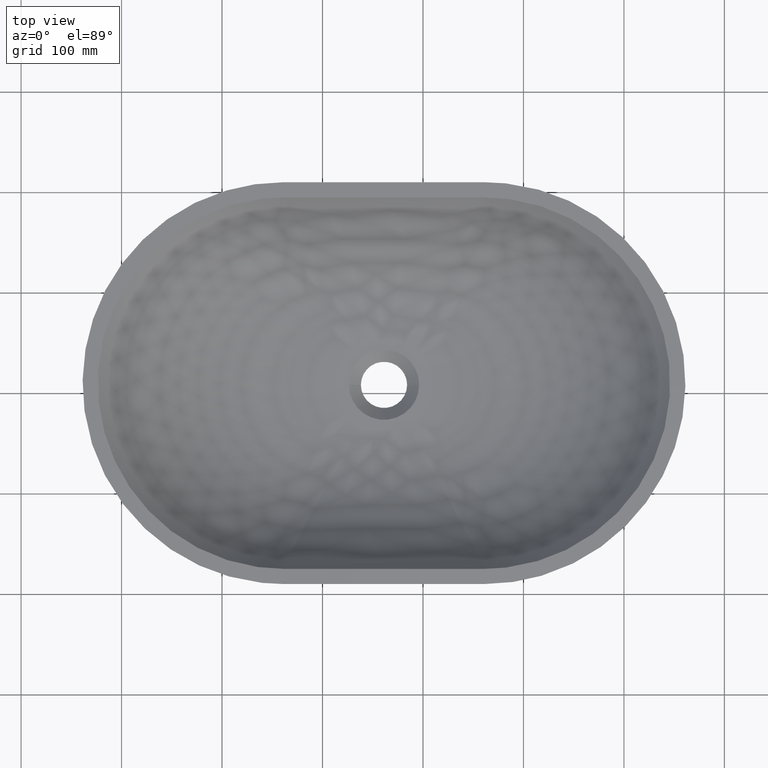
[diagram: clean part render]
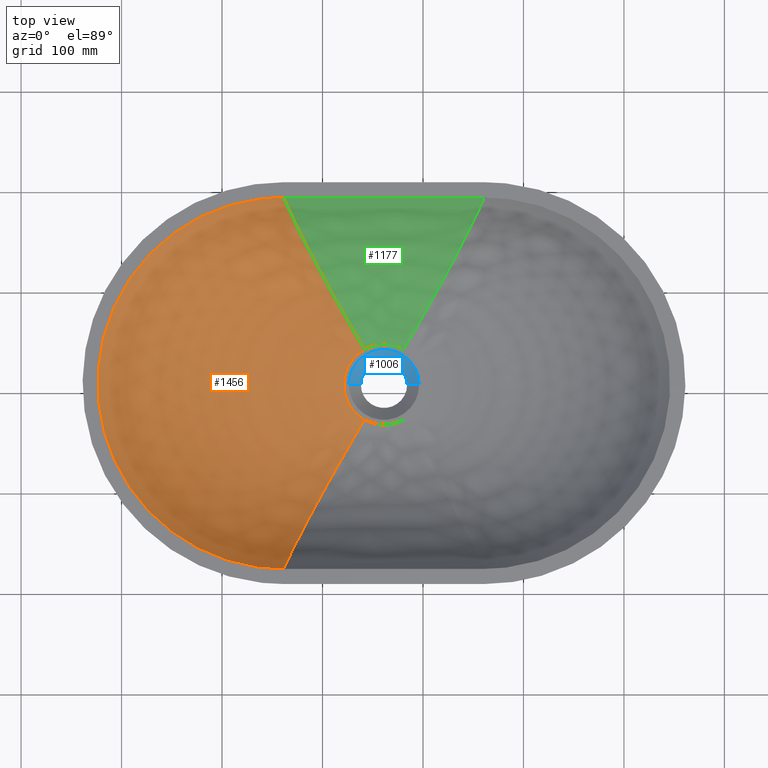
[diagram: same view with three faces highlighted in distinct colors, each labeled with its STEP entity id]
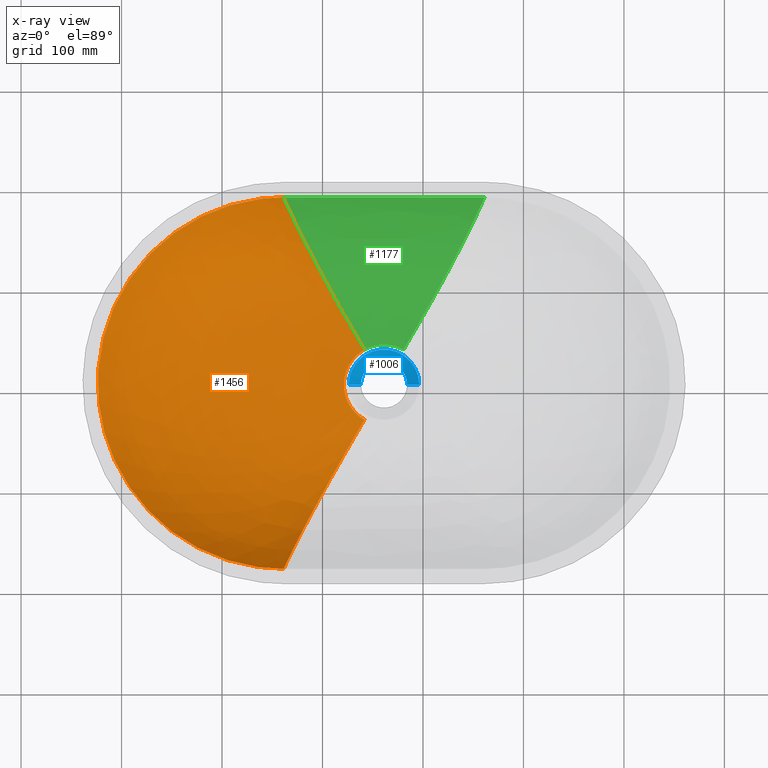
[diagram: x-ray of the same camera — body ghosted, the three highlighted faces saturated]
A machine part, top view with three faces highlighted in distinct colors.
The next image is the same camera in x-ray (body ghosted, the three faces saturated) — at least one of them is partly hidden behind the body in this view.
Their STEP definitions:

[orange] entity #1456 — the highlighted face is a freeform B-spline surface patch.
#8 = CARTESIAN_POINT ( 'NONE',  ( 138.6418094252319400, 41.52484848242716000, 27.38179570953521800 ) ) ;
#17 = CARTESIAN_POINT ( 'NONE',  ( 121.5444793992003000, 13.73192125882762200, 27.38179570953520100 ) ) ;
#23 = CARTESIAN_POINT ( 'NONE',  ( 121.5370937929383900, 13.67576086624798600, 27.38179570953520800 ) ) ;
#25 = VERTEX_POINT ( 'NONE', #989 ) ;
#31 = CARTESIAN_POINT ( 'NONE',  ( 121.3095396720884100, 11.91817017333239000, 27.38179570953520400 ) ) ;
#34 = CARTESIAN_POINT ( 'NONE',  ( -60.61192556270950100, 148.7361464839234500, 115.1817957095351900 ) ) ;
#40 = CARTESIAN_POINT ( 'NONE',  ( 56.49416635617522800, 193.3661969212668300, 115.1817957095351800 ) ) ;
#43 = CARTESIAN_POINT ( 'NONE',  ( 18.83443062802116700, 145.8000712511814400, 54.30835633261380500 ) ) ;
#51 = CARTESIAN_POINT ( 'NONE',  ( 121.1991992763284100, 10.20567672939765600, 27.38179570953520100 ) ) ;
#57 = CARTESIAN_POINT ( 'NONE',  ( 61.25352625135712300, 193.3659434360993400, 115.1817957095353500 ) ) ;
#67 = CARTESIAN_POINT ( 'NONE',  ( 16.58033270171394900, 188.6821975297097300, 115.1817957095351700 ) ) ;
#76 = CARTESIAN_POINT ( 'NONE',  ( 130.0593843015474800, 33.59417279366883900, 27.38179570953520800 ) ) ;
#86 = CARTESIAN_POINT ( 'NONE',  ( 124.6464454551068400, 24.73369643339782800, 27.38179570953521100 ) ) ;
#91 = CARTESIAN_POINT ( 'NONE',  ( 137.5056673138918800, 40.71475570023712700, 27.38179570953520100 ) ) ;
#95 = CARTESIAN_POINT ( 'NONE',  ( 122.9843017898368800, 20.31847855314999100, 27.38179570953520800 ) ) ;
#108 = CARTESIAN_POINT ( 'NONE',  ( 104.6398138363975200, -89.50696045107434900, 25.02137870771295900 ) ) ;
#134 = CARTESIAN_POINT ( 'NONE',  ( 121.1991659419522700, 7.627843900941973000, 27.38179570953520100 ) ) ;
#139 = CARTESIAN_POINT ( 'NONE',  ( 121.2405352533717000, 6.341463314853908400, 27.38179570953520800 ) ) ;
#169 = CARTESIAN_POINT ( 'NONE',  ( 141.7453449058840800, -26.46353534714630500, 27.38179570953521100 ) ) ;
#183 = CARTESIAN_POINT ( 'NONE',  ( 137.2421103705587800, -23.54508063612776100, 27.38179570953520400 ) ) ;
#194 = CARTESIAN_POINT ( 'NONE',  ( 56.47681756238056000, -176.4288188382742200, 115.2427285842378500 ) ) ;
#211 = CARTESIAN_POINT ( 'NONE',  ( 137.7224132375823400, 40.87325805533932800, 27.38179570953520100 ) ) ;
#212 = CARTESIAN_POINT ( 'NONE',  ( -56.78277687686650000, -135.7206937010476500, 115.1817957095351800 ) ) ;
#215 = B_SPLINE_CURVE_WITH_KNOTS ( 'NONE', 3,
 ( #493, #506, #961, #1391 ),
 .UNSPECIFIED., .F., .F.,
 ( 4, 4 ),
 ( 0.0000000000000000000, 1.000000000000000000 ),
 .UNSPECIFIED. ) ;
#219 = CARTESIAN_POINT ( 'NONE',  ( -83.56933736362040600, 125.0717341970164000, 115.1817957095351400 ) ) ;
#221 = CARTESIAN_POINT ( 'NONE',  ( 141.7453449058840800, -26.46353534714630500, 27.38179570953521100 ) ) ;
#240 = CARTESIAN_POINT ( 'NONE',  ( 41.09580120890458200, 153.1212506064693700, 54.30835633261376900 ) ) ;
#244 = CARTESIAN_POINT ( 'NONE',  ( 121.3612249125908100, 4.845123663662483300, 27.38179570953519700 ) ) ;
#246 = CARTESIAN_POINT ( 'NONE',  ( 136.7095855323287600, 40.12633244811440400, 27.38179570953520800 ) ) ;
#256 = CARTESIAN_POINT ( 'NONE',  ( 128.6570777392304900, 31.81745401296742100, 27.38179570953520800 ) ) ;
#263 = CARTESIAN_POINT ( 'NONE',  ( 134.5136055733912900, 38.29022622208876900, 27.38179570953520100 ) ) ;
#267 = CARTESIAN_POINT ( 'NONE',  ( 135.6733078079110700, 39.30591847247954700, 27.38179570953520100 ) ) ;
#272 = CARTESIAN_POINT ( 'NONE',  ( -35.74889015185740200, 166.7909275831100300, 115.1817957095351200 ) ) ;
#284 = CARTESIAN_POINT ( 'NONE',  ( 127.6355362349541300, 30.32220728293694700, 27.38179570953520400 ) ) ;
#292 = CARTESIAN_POINT ( 'NONE',  ( 61.23695363564807800, -176.4286435701466800, 115.2427285842378500 ) ) ;
#298 = CARTESIAN_POINT ( 'NONE',  ( 133.0654477296181400, -19.94712322476115300, 27.38179570953520400 ) ) ;
#312 = CARTESIAN_POINT ( 'NONE',  ( 123.4652815693710700, 21.81274209110134200, 27.38179570953519700 ) ) ;
#333 = CARTESIAN_POINT ( 'NONE',  ( 121.4396761078412100, 4.098063262877932500, 27.38179570953520400 ) ) ;
#349 = CARTESIAN_POINT ( 'NONE',  ( 121.4834282968765300, 3.724810418688434300, 27.38179570953520800 ) ) ;
#361 = CARTESIAN_POINT ( 'NONE',  ( 121.5031492189081900, 3.564904347507825900, 27.38179570953521100 ) ) ;
#368 = CARTESIAN_POINT ( 'NONE',  ( 121.5165120522345500, 3.458313507492312600, 27.38179570953520800 ) ) ;
#372 = CARTESIAN_POINT ( 'NONE',  ( 121.5231176728074400, 3.406442868797834300, 27.38179570953521100 ) ) ;
#386 = CARTESIAN_POINT ( 'NONE',  ( 129.9201188699200600, 33.42046681471300900, 27.38179570953520400 ) ) ;
#395 = CARTESIAN_POINT ( 'NONE',  ( 130.3431833251608200, 33.94218012502884800, 27.38179570953521100 ) ) ;
#398 = CARTESIAN_POINT ( 'NONE',  ( 132.7408447342051500, 36.61063294850879400, 27.38179570953521100 ) ) ;
#406 = VERTEX_POINT ( 'NONE', #221 ) ;
#442 = CARTESIAN_POINT ( 'NONE',  ( 133.3074798976426500, -20.18455943998800700, 27.38179570953521100 ) ) ;
#459 = CARTESIAN_POINT ( 'NONE',  ( 134.0210215325073500, -20.87488736478783100, 27.38179570953520800 ) ) ;
#460 = CARTESIAN_POINT ( 'NONE',  ( 138.0272456049702000, 41.09299891199771800, 27.38179570953520400 ) ) ;
#465 = CARTESIAN_POINT ( 'NONE',  ( 140.9944619788642800, 43.01983055991762200, 27.38179570953520100 ) ) ;
#469 = CARTESIAN_POINT ( 'NONE',  ( 141.7453449058840800, 43.43777836800068600, 27.38179570953520800 ) ) ;
#478 = ORIENTED_EDGE ( 'NONE', *, *, #1146, .T. ) ;
#479 = CARTESIAN_POINT ( 'NONE',  ( 43.07581187548812800, 193.0410983710836200, 115.1817957095351800 ) ) ;
#482 = CARTESIAN_POINT ( 'NONE',  ( -10.78688942976676100, 179.4376817148611600, 115.1817957095351800 ) ) ;
#484 = CARTESIAN_POINT ( 'NONE',  ( 43.07279658511280500, -176.0653268974612000, 115.1817957095351400 ) ) ;
#488 = CARTESIAN_POINT ( 'NONE',  ( -23.01016818544261600, -157.8687333612659200, 115.1817957095351700 ) ) ;
#489 = CARTESIAN_POINT ( 'NONE',  ( 121.6434868648992400, 2.476536236015075300, 27.38179570953520400 ) ) ;
#491 = CARTESIAN_POINT ( 'NONE',  ( -83.56923668714137000, -108.0947487825566600, 115.1817957095352500 ) ) ;
#492 = CARTESIAN_POINT ( 'NONE',  ( 13.27293077981662400, -171.1633457057354800, 115.1817957095351800 ) ) ;
#493 = CARTESIAN_POINT ( 'NONE',  ( 141.7453449058840800, 43.43777836800068600, 27.38179570953520800 ) ) ;
#497 = CARTESIAN_POINT ( 'NONE',  ( -102.7978964869850100, 96.16015365069269200, 115.1817957095351200 ) ) ;
#498 = CARTESIAN_POINT ( 'NONE',  ( 121.8563477257559100, 1.172066662740643500, 27.38179570953520100 ) ) ;
#503 = CARTESIAN_POINT ( 'NONE',  ( -116.6687985316302700, 62.97149256976440800, 115.1817957095351700 ) ) ;
#506 = CARTESIAN_POINT ( 'NONE',  ( 104.6521841846881100, 106.4601858741884100, 25.02216563029785900 ) ) ;
#507 = CARTESIAN_POINT ( 'NONE',  ( -123.9329679121835100, 26.97352634829886100, 115.1817957095351900 ) ) ;
#514 = CARTESIAN_POINT ( 'NONE',  ( -123.9360966759568800, -9.999735005459843500, 115.1817957095351900 ) ) ;
#518 = CARTESIAN_POINT ( 'NONE',  ( -116.6666459752446300, -45.99517196044517700, 115.1817957095352400 ) ) ;
#519 = CARTESIAN_POINT ( 'NONE',  ( 56.49416607286459400, -176.3919538216564400, 115.1817957095351800 ) ) ;
#520 = CARTESIAN_POINT ( 'NONE',  ( -102.7977174638970400, -79.18967452623115800, 115.1817957095351400 ) ) ;
#521 = CARTESIAN_POINT ( 'NONE',  ( 122.1798091933808100, -0.3352198724346690500, 27.38179570953519700 ) ) ;
#537 = VERTEX_POINT ( 'NONE', #585 ) ;
#585 = CARTESIAN_POINT ( 'NONE',  ( 61.25352625135712300, 193.3659434360993400, 115.1817957095353500 ) ) ;
#605 = EDGE_LOOP ( 'NONE', ( #478, #953, #655, #760 ) ) ;
#612 = CARTESIAN_POINT ( 'NONE',  ( 125.6082563390428000, 26.78280069744848300, 27.38179570953520400 ) ) ;
#618 = CARTESIAN_POINT ( 'NONE',  ( 122.3603208763496800, -1.085214481611107100, 27.38179570953520800 ) ) ;
#623 = CARTESIAN_POINT ( 'NONE',  ( 122.4417075152984300, -1.405858887312902300, 27.38179570953520800 ) ) ;
#632 = CARTESIAN_POINT ( 'NONE',  ( 121.7535832898563400, 15.14969090342682800, 27.38179570953520400 ) ) ;
#655 = ORIENTED_EDGE ( 'NONE', *, *, #902, .T. ) ;
#675 = CARTESIAN_POINT ( 'NONE',  ( 126.2565115141187600, 27.97644550258136000, 27.38179570953520100 ) ) ;
#679 = CARTESIAN_POINT ( 'NONE',  ( 124.3747741384125600, 24.10805624163959800, 27.38179570953521500 ) ) ;
#712 = CARTESIAN_POINT ( 'NONE',  ( 122.4968596055097500, -1.619448078808800600, 27.38179570953520800 ) ) ;
#721 = FACE_OUTER_BOUND ( 'NONE', #605, .T. ) ;
#724 = CARTESIAN_POINT ( 'NONE',  ( 141.7453449058840800, -26.46353534714630500, 27.38179570953521100 ) ) ;
#726 = CARTESIAN_POINT ( 'NONE',  ( 135.0007724053972400, -21.76203942975281800, 27.38179570953521100 ) ) ;
#736 = CARTESIAN_POINT ( 'NONE',  ( 61.25352625135710800, -176.3917004152449700, 115.1817957095353500 ) ) ;
#751 = CARTESIAN_POINT ( 'NONE',  ( 77.82157796651219400, -139.4619978760338500, 54.28883229696504000 ) ) ;
#758 = CARTESIAN_POINT ( 'NONE',  ( 131.8055338918457300, 35.64283457689042900, 27.38179570953519700 ) ) ;
#760 = ORIENTED_EDGE ( 'NONE', *, *, #928, .F. ) ;
#766 = EDGE_CURVE ( 'NONE', #1439, #406, #791, .T. ) ;
#785 = CARTESIAN_POINT ( 'NONE',  ( 122.5243715157838600, -1.724240994876392600, 27.38179570953520800 ) ) ;
#791 = B_SPLINE_CURVE_WITH_KNOTS ( 'NONE', 3,
 ( #469, #465, #873, #8, #460, #211, #840, #91, #1198, #246, #267, #263, #1466, #1210, #1520, #1347, #398, #758, #1133, #395, #76, #386, #256, #284, #675, #612, #1507, #86, #1532, #679, #1255, #312, #95, #1387, #1264, #1270, #1010, #1144, #803, #632, #1007, #877, #1076, #17, #23, #31, #51, #134, #139, #244, #333, #349, #361, #368, #372, #489, #498, #521, #618, #623, #712, #785, #813, #821, #920, #949, #1039, #1044, #1049, #1064, #1172, #1190, #1195, #1208, #1323, #1329, #1362, #1453, #1464, #1475, #298, #1089, #442, #459, #726, #1215, #1450, #1309, #183, #1382, #1046, #1022, #977, #724 ),
 .UNSPECIFIED., .F., .F.,
 ( 4, 1, 1, 1, 1, 2, 2, 1, 1, 1, 2, 2, 1, 1, 2, 2, 2, 1, 1, 2, 2, 1, 1, 1, 2, 2, 1, 1, 1, 1, 2, 2, 2, 1, 1, 1, 1, 2, 2, 1, 1, 1, 2, 2, 1, 1, 2, 2, 2, 1, 1, 2, 2, 1, 1, 1, 2, 2, 1, 1, 1, 1, 2, 2, 4 ),
 ( 0.0000000000000000000, 0.03125000000000949200, 0.04687500000001374600, 0.05468750000001546000, 0.05859375000001665300, 0.06054687500001676400, 0.06250000000001687500, 0.09375000000001992900, 0.1093750000000211600, 0.1171875000000217700, 0.1210937500000220000, 0.1250000000000222300, 0.1562500000000205700, 0.1718750000000197300, 0.1796875000000192100, 0.1875000000000187100, 0.2500000000000162100, 0.2812500000000152100, 0.2968750000000146000, 0.3046875000000143200, 0.3125000000000140400, 0.3437500000000128800, 0.3593750000000122100, 0.3671875000000117700, 0.3710937500000116600, 0.3750000000000114900, 0.4062500000000099400, 0.4218750000000090500, 0.4296875000000086000, 0.4335937500000084900, 0.4355468750000083800, 0.4375000000000083300, 0.5000000000000060000, 0.5312500000000047700, 0.5468750000000042200, 0.5546875000000040000, 0.5585937500000037700, 0.5605468750000037700, 0.5625000000000036600, 0.5937500000000017800, 0.6093750000000008900, 0.6171875000000005600, 0.6210937500000002200, 0.6250000000000000000, 0.6562499999999983300, 0.6718749999999976700, 0.6796874999999973400, 0.6874999999999968900, 0.7499999999999938900, 0.7812499999999923400, 0.7968749999999913400, 0.8046874999999906700, 0.8124999999999899000, 0.8437499999999873400, 0.8593749999999860100, 0.8671874999999854600, 0.8710937499999851200, 0.8749999999999849000, 0.9062499999999820100, 0.9218749999999810200, 0.9296874999999809000, 0.9335937499999806800, 0.9355468749999811300, 0.9374999999999814600, 1.000000000000000000 ),
 .UNSPECIFIED. ) ;
#803 = CARTESIAN_POINT ( 'NONE',  ( 122.0269917833575700, 16.66685529920030000, 27.38179570953520100 ) ) ;
#813 = CARTESIAN_POINT ( 'NONE',  ( 122.7852066025340500, -2.701061907609637800, 27.38179570953520800 ) ) ;
#821 = CARTESIAN_POINT ( 'NONE',  ( 123.1759518191221600, -3.988989792304356900, 27.38179570953520100 ) ) ;
#840 = CARTESIAN_POINT ( 'NONE',  ( 137.5922956964326400, 40.77826567289069700, 27.38179570953521100 ) ) ;
#873 = CARTESIAN_POINT ( 'NONE',  ( 139.8905334077003300, 42.35801905173671900, 27.38179570953521100 ) ) ;
#877 = CARTESIAN_POINT ( 'NONE',  ( 121.5813547872440700, 14.00523806678124400, 27.38179570953521100 ) ) ;
#888 = CARTESIAN_POINT ( 'NONE',  ( -83.61271296371262500, -108.1176339796334200, 115.2427285842379200 ) ) ;
#902 = EDGE_CURVE ( 'NONE', #1439, #537, #215, .T. ) ;
#911 = CARTESIAN_POINT ( 'NONE',  ( -40.15197888642486400, 102.2150851350573900, 54.30835633261374100 ) ) ;
#916 = CARTESIAN_POINT ( 'NONE',  ( 123.0831457029475600, 20.94923666690887700, 27.38179570953520100 ) ) ;
#918 = CARTESIAN_POINT ( 'NONE',  ( -83.61281333787945900, 125.0946205765162100, 115.2427285842378100 ) ) ;
#920 = CARTESIAN_POINT ( 'NONE',  ( 123.7070101650870400, -5.466197326286294200, 27.38179570953520400 ) ) ;
#923 = B_SPLINE_SURFACE_WITH_KNOTS ( 'NONE', 3, 3, ( 
 ( #1185, #1188, #1011, #1248 ),
 ( #1249, #1242, #1244, #1238 ),
 ( #1241, #1216, #1233, #1165 ),
 ( #1254, #1352, #240, #1436 ),
 ( #1504, #1253, #43, #1169 ),
 ( #1224, #1166, #975, #972 ),
 ( #1018, #1005, #992, #1021 ),
 ( #1030, #1026, #911, #918 ),
 ( #916, #1032, #1034, #1025 ),
 ( #1031, #1182, #1042, #1149 ),
 ( #1164, #1043, #1129, #1052 ),
 ( #1047, #1058, #1054, #1080 ),
 ( #1074, #1084, #1053, #1246 ),
 ( #1250, #1207, #1230, #1088 ),
 ( #1291, #1093, #1092, #888 ),
 ( #1098, #1094, #1107, #1260 ),
 ( #1480, #1517, #1477, #1275 ),
 ( #1262, #1267, #1277, #1295 ),
 ( #1300, #1305, #1308, #1311 ),
 ( #1313, #1315, #1357, #194 ),
 ( #169, #108, #1529, #292 ) ),
 .UNSPECIFIED., .F., .F., .F.,
 ( 4, 1, 1, 1, 1, 1, 1, 1, 1, 1, 1, 1, 1, 1, 1, 1, 1, 1, 4 ),
 ( 4, 4 ),
 ( 0.0000000000000000000, 0.07142857142857142500, 0.1428571428571428500, 0.1904761904761904700, 0.2380952380952380800, 0.2857142857142857000, 0.3333333333333333100, 0.3809523809523809300, 0.4285714285714285500, 0.4761904761904761600, 0.5238095238095237200, 0.5714285714285714000, 0.6190476190476189600, 0.6666666666666666300, 0.7142857142857141900, 0.7857142857142855900, 0.8571428571428571000, 0.9285714285714286000, 1.000000000000000000 ),
 ( 0.0000000000000000000, 0.9992401300737451300 ),
 .UNSPECIFIED. ) ;
#928 = EDGE_CURVE ( 'NONE', #25, #537, #1322, .T. ) ;
#949 = CARTESIAN_POINT ( 'NONE',  ( 123.9507185119174700, -6.093848769815299900, 27.38179570953520800 ) ) ;
#953 = ORIENTED_EDGE ( 'NONE', *, *, #766, .F. ) ;
#961 = CARTESIAN_POINT ( 'NONE',  ( 77.82157796651229400, 156.4362408968881900, 54.28883229696504000 ) ) ;
#972 = CARTESIAN_POINT ( 'NONE',  ( -35.78325918527140500, 166.8220610940044000, 115.2427285842378000 ) ) ;
#975 = CARTESIAN_POINT ( 'NONE',  ( -1.426260144259363600, 135.6976519035778200, 54.30835633261378300 ) ) ;
#977 = CARTESIAN_POINT ( 'NONE',  ( 140.2432670869950200, -25.62746608869805300, 27.38179570953520100 ) ) ;
#980 = CARTESIAN_POINT ( 'NONE',  ( 141.7453449058840800, 43.43777836800068600, 27.38179570953520800 ) ) ;
#989 = CARTESIAN_POINT ( 'NONE',  ( 61.25352625135710800, -176.3917004152449700, 115.1817957095353500 ) ) ;
#992 = CARTESIAN_POINT ( 'NONE',  ( -21.57252859551276500, 121.2209494436508400, 54.30835633261384000 ) ) ;
#1005 = CARTESIAN_POINT ( 'NONE',  ( 41.01179948242082700, 81.48856224369012600, 25.02137870771295900 ) ) ;
#1007 = CARTESIAN_POINT ( 'NONE',  ( 121.6356378245420400, 14.38734896850267100, 27.38179570953519700 ) ) ;
#1010 = CARTESIAN_POINT ( 'NONE',  ( 122.5818151232615800, 18.91359820714333000, 27.38179570953520800 ) ) ;
#1011 = CARTESIAN_POINT ( 'NONE',  ( 77.80368341298562000, 156.4695728795954900, 54.30835633261381900 ) ) ;
#1018 = CARTESIAN_POINT ( 'NONE',  ( 127.1027219828066400, 29.56539565497601200, 27.38179570953521100 ) ) ;
#1021 = CARTESIAN_POINT ( 'NONE',  ( -60.65101769639913700, 148.7636973890833500, 115.2427285842378700 ) ) ;
#1022 = CARTESIAN_POINT ( 'NONE',  ( 138.8012234179304000, -24.69853101638180000, 27.38179570953520400 ) ) ;
#1025 = CARTESIAN_POINT ( 'NONE',  ( -102.8450597685259300, 96.17735892205226400, 115.2427285842378000 ) ) ;
#1026 = CARTESIAN_POINT ( 'NONE',  ( 29.34597754872092100, 69.00599525865484900, 25.02137870771295500 ) ) ;
#1030 = CARTESIAN_POINT ( 'NONE',  ( 124.8784743332544700, 25.46932968385150900, 27.38179570953520400 ) ) ;
#1031 = CARTESIAN_POINT ( 'NONE',  ( 121.8221931912090700, 16.10246361398747400, 27.38179570953520400 ) ) ;
#1032 = CARTESIAN_POINT ( 'NONE',  ( 19.61031458148243100, 53.90225797137154000, 25.02137870771295200 ) ) ;
#1034 = CARTESIAN_POINT ( 'NONE',  ( -55.69817414559949500, 78.97726921332459000, 54.30835633261381900 ) ) ;
#1039 = CARTESIAN_POINT ( 'NONE',  ( 124.1167711682144700, -6.511074732255501400, 27.38179570953520800 ) ) ;
#1042 = CARTESIAN_POINT ( 'NONE',  ( -66.90633062165554200, 52.29531756190898100, 54.30835633261372700 ) ) ;
#1043 = CARTESIAN_POINT ( 'NONE',  ( 8.944878350088334400, 18.04224414575142500, 25.02137870771296200 ) ) ;
#1044 = CARTESIAN_POINT ( 'NONE',  ( 124.2008184615185700, -6.717241363919997700, 27.38179570953521500 ) ) ;
#1046 = CARTESIAN_POINT ( 'NONE',  ( 137.3760261012137700, -23.64479885250424100, 27.38179570953520400 ) ) ;
#1047 = CARTESIAN_POINT ( 'NONE',  ( 121.1720550032453500, 5.925141961116182200, 27.38179570953521800 ) ) ;
#1049 = CARTESIAN_POINT ( 'NONE',  ( 124.9872024669918000, -8.600462842082965400, 27.38179570953520800 ) ) ;
#1052 = CARTESIAN_POINT ( 'NONE',  ( -123.9841972976321600, 26.97715352045887700, 115.2427285842378700 ) ) ;
#1053 = CARTESIAN_POINT ( 'NONE',  ( -66.90407451696204100, -35.31932405617600800, 54.30835633261389000 ) ) ;
#1054 = CARTESIAN_POINT ( 'NONE',  ( -72.77580228121975400, -6.377180855070389700, 54.30835633261386900 ) ) ;
#1058 = CARTESIAN_POINT ( 'NONE',  ( 8.944858292037807200, -1.068274301173318700, 25.02137870771296900 ) ) ;
#1064 = CARTESIAN_POINT ( 'NONE',  ( 125.7968764278968100, -10.22025847982585700, 27.38179570953520800 ) ) ;
#1074 = CARTESIAN_POINT ( 'NONE',  ( 121.8223594109503700, 0.8718787360525502800, 27.38179570953521500 ) ) ;
#1076 = CARTESIAN_POINT ( 'NONE',  ( 121.5590955631218600, 13.84127483727362700, 27.38179570953521100 ) ) ;
#1080 = CARTESIAN_POINT ( 'NONE',  ( -123.9873259823161600, -10.00336228680957600, 115.2427285842378700 ) ) ;
#1084 = CARTESIAN_POINT ( 'NONE',  ( 12.60837022614667900, -19.69288216690671300, 25.02137870771296900 ) ) ;
#1088 = CARTESIAN_POINT ( 'NONE',  ( -102.8448805597227500, -79.20688045977669800, 115.2427285842378100 ) ) ;
#1089 = CARTESIAN_POINT ( 'NONE',  ( 133.2255779106355900, -20.10466635719858500, 27.38179570953520800 ) ) ;
#1092 = CARTESIAN_POINT ( 'NONE',  ( -40.15157579767600300, -85.23928160024878800, 54.30835633261394700 ) ) ;
#1093 = CARTESIAN_POINT ( 'NONE',  ( 29.34534127864004900, -52.02893043070233900, 25.02137870771297700 ) ) ;
#1094 = CARTESIAN_POINT ( 'NONE',  ( 42.95752438423374300, -66.60116147276876600, 25.02137870771295900 ) ) ;
#1098 = CARTESIAN_POINT ( 'NONE',  ( 127.4731877733265000, -13.27469985080692700, 27.38179570953521500 ) ) ;
#1107 = CARTESIAN_POINT ( 'NONE',  ( -18.47374717713903900, -107.4266233035400500, 54.30835633261380500 ) ) ;
#1129 = CARTESIAN_POINT ( 'NONE',  ( -72.77259342937826100, 23.35108127545968800, 54.30835633261385500 ) ) ;
#1131 = CARTESIAN_POINT ( 'NONE',  ( 61.25352625135710800, -176.3917004152449700, 115.1817957095353500 ) ) ;
#1133 = CARTESIAN_POINT ( 'NONE',  ( 130.7730775491567700, 34.46037994094579900, 27.38179570953520100 ) ) ;
#1144 = CARTESIAN_POINT ( 'NONE',  ( 122.3256577427119800, 17.95439139716357600, 27.38179570953520400 ) ) ;
#1146 = EDGE_CURVE ( 'NONE', #25, #406, #1163, .T. ) ;
#1149 = CARTESIAN_POINT ( 'NONE',  ( -116.7186281349143300, 62.98218267023808200, 115.2427285842378400 ) ) ;
#1163 = B_SPLINE_CURVE_WITH_KNOTS ( 'NONE', 3,
 ( #1131, #751, #1344, #1349 ),
 .UNSPECIFIED., .F., .F.,
 ( 4, 4 ),
 ( 0.0000000000000000000, 1.000000000000000000 ),
 .UNSPECIFIED. ) ;
#1164 = CARTESIAN_POINT ( 'NONE',  ( 121.1722613746415200, 11.04907230093776600, 27.38179570953521500 ) ) ;
#1165 = CARTESIAN_POINT ( 'NONE',  ( 43.05612232519844400, 193.0777398399368700, 115.2427285842378500 ) ) ;
#1166 = CARTESIAN_POINT ( 'NONE',  ( 53.71155101459316200, 91.14718430190839600, 25.02137870771295500 ) ) ;
#1169 = CARTESIAN_POINT ( 'NONE',  ( -10.81655083827458300, 179.4713627013695400, 115.2427285842378500 ) ) ;
#1172 = CARTESIAN_POINT ( 'NONE',  ( 127.1758414176474300, -12.56605537285533500, 27.38179570953520100 ) ) ;
#1182 = CARTESIAN_POINT ( 'NONE',  ( 12.60844749086205300, 36.66796073628962900, 25.02137870771295500 ) ) ;
#1185 = CARTESIAN_POINT ( 'NONE',  ( 141.7453449058840800, 43.43777836800068600, 27.38179570953521100 ) ) ;
#1188 = CARTESIAN_POINT ( 'NONE',  ( 104.6398138363976400, 106.4812034719287400, 25.02137870771295900 ) ) ;
#1190 = CARTESIAN_POINT ( 'NONE',  ( 127.9035319832658200, -13.71300311925676500, 27.38179570953520400 ) ) ;
#1195 = CARTESIAN_POINT ( 'NONE',  ( 128.8193684336210900, -15.00569509819348600, 27.38179570953520800 ) ) ;
#1198 = CARTESIAN_POINT ( 'NONE',  ( 137.4635656715875900, 40.68376319498546000, 27.38179570953520400 ) ) ;
#1207 = CARTESIAN_POINT ( 'NONE',  ( 19.61065011393285900, -36.92972773072932600, 25.02137870771295500 ) ) ;
#1208 = CARTESIAN_POINT ( 'NONE',  ( 129.2261977960163500, -15.54997443376671600, 27.38179570953520100 ) ) ;
#1210 = CARTESIAN_POINT ( 'NONE',  ( 133.7054903025066300, 37.54068747039083600, 27.38179570953520100 ) ) ;
#1215 = CARTESIAN_POINT ( 'NONE',  ( 136.1934486366415100, -22.73880112803435700, 27.38179570953520400 ) ) ;
#1216 = CARTESIAN_POINT ( 'NONE',  ( 94.66851300342757700, 106.0038990722516000, 25.02137870771295900 ) ) ;
#1224 = CARTESIAN_POINT ( 'NONE',  ( 129.6275954532428900, 33.17014526929340000, 27.38179570953520100 ) ) ;
#1230 = CARTESIAN_POINT ( 'NONE',  ( -55.69818080042763600, -62.00612890616973500, 54.30835633261373400 ) ) ;
#1233 = CARTESIAN_POINT ( 'NONE',  ( 62.73866418203095900, 156.4463193729093300, 54.30835633261389000 ) ) ;
#1238 = CARTESIAN_POINT ( 'NONE',  ( 56.47681756238056700, 193.4030618591286000, 115.2427285842378500 ) ) ;
#1241 = CARTESIAN_POINT ( 'NONE',  ( 138.8456615783603900, 41.74569410499405800, 27.38179570953521100 ) ) ;
#1242 = CARTESIAN_POINT ( 'NONE',  ( 101.9599605137967000, 106.3979270925197500, 25.02137870771295900 ) ) ;
#1244 = CARTESIAN_POINT ( 'NONE',  ( 73.81943390791515500, 156.5480335854718400, 54.30835633261381900 ) ) ;
#1246 = CARTESIAN_POINT ( 'NONE',  ( -116.7164756813828500, -46.00586173324308000, 115.2427285842379100 ) ) ;
#1248 = CARTESIAN_POINT ( 'NONE',  ( 61.23695363564809200, 193.4028865910010500, 115.2427285842378500 ) ) ;
#1249 = CARTESIAN_POINT ( 'NONE',  ( 140.9000337424519400, 42.96727100234937100, 27.38179570953521100 ) ) ;
#1250 = CARTESIAN_POINT ( 'NONE',  ( 123.0830484855979100, -3.975216026901331000, 27.38179570953521100 ) ) ;
#1253 = CARTESIAN_POINT ( 'NONE',  ( 66.54295117723994200, 98.05823378424084100, 25.02137870771295500 ) ) ;
#1254 = CARTESIAN_POINT ( 'NONE',  ( 135.4607107163841400, 39.21377059335370800, 27.38179570953520100 ) ) ;
#1255 = CARTESIAN_POINT ( 'NONE',  ( 123.9418757569833500, 23.07143111184852600, 27.38179570953520800 ) ) ;
#1260 = CARTESIAN_POINT ( 'NONE',  ( -56.82113766260656700, -135.7490244797979200, 115.2427285842378500 ) ) ;
#1262 = CARTESIAN_POINT ( 'NONE',  ( 135.0377652653108400, -21.92319266909636600, 27.38179570953522200 ) ) ;
#1264 = CARTESIAN_POINT ( 'NONE',  ( 122.6715675860917500, 19.24055389539610400, 27.38179570953520400 ) ) ;
#1267 = CARTESIAN_POINT ( 'NONE',  ( 78.99134343890230500, -85.97224805532724200, 25.02137870771296200 ) ) ;
#1270 = CARTESIAN_POINT ( 'NONE',  ( 122.6117903286202300, 19.02401707881421100, 27.38179570953520800 ) ) ;
#1275 = CARTESIAN_POINT ( 'NONE',  ( -23.04212171067649700, -157.9014708110513500, 115.2427285842378400 ) ) ;
#1277 = CARTESIAN_POINT ( 'NONE',  ( 38.39406227530598400, -135.7312365459124800, 54.30835633261380500 ) ) ;
#1291 = CARTESIAN_POINT ( 'NONE',  ( 124.8785504691571600, -8.494933545527230100, 27.38179570953522200 ) ) ;
#1295 = CARTESIAN_POINT ( 'NONE',  ( 13.24777560459905600, -171.1988233281420300, 115.2427285842378500 ) ) ;
#1300 = CARTESIAN_POINT ( 'NONE',  ( 138.8455793838759300, -24.77127926434901200, 27.38179570953520100 ) ) ;
#1305 = CARTESIAN_POINT ( 'NONE',  ( 94.66708362146701500, -89.02899004974405300, 25.02137870771295900 ) ) ;
#1308 = CARTESIAN_POINT ( 'NONE',  ( 62.73624544651328000, -139.4707421343312000, 54.30835633261378300 ) ) ;
#1309 = CARTESIAN_POINT ( 'NONE',  ( 137.1096704865400700, -23.44588844491783100, 27.38179570953521100 ) ) ;
#1311 = CARTESIAN_POINT ( 'NONE',  ( 43.05310643745139700, -176.1019681716979300, 115.2427285842378100 ) ) ;
#1313 = CARTESIAN_POINT ( 'NONE',  ( 140.9000337424519400, -25.99302798149498600, 27.38179570953521100 ) ) ;
#1315 = CARTESIAN_POINT ( 'NONE',  ( 101.9605998901387200, -89.42388854348041600, 25.02137870771295500 ) ) ;
#1322 = B_SPLINE_CURVE_WITH_KNOTS ( 'NONE', 3,
 ( #736, #519, #484, #492, #488, #212, #491, #520, #518, #514, #507, #503, #497, #219, #34, #272, #482, #67, #479, #40, #57 ),
 .UNSPECIFIED., .F., .F.,
 ( 4, 1, 1, 1, 1, 1, 1, 1, 1, 1, 1, 1, 1, 1, 1, 1, 1, 1, 4 ),
 ( 0.0000000000000000000, 0.04133513235021393100, 0.08267026470042793100, 0.1240053970506419200, 0.1653405294008558600, 0.1928972843009984500, 0.2204540392011411200, 0.2480107941012837100, 0.2755675490014263800, 0.3031243039015689700, 0.3306810588017115600, 0.3582378137018542600, 0.3857945686019969000, 0.4133513235021394900, 0.4409080784022821300, 0.4684648333024247800, 0.4960215882025674200, 0.5373567205527813900, 0.5786918529029953000 ),
 .UNSPECIFIED. ) ;
#1323 = CARTESIAN_POINT ( 'NONE',  ( 129.5006013768418100, -15.91066476580611400, 27.38179570953520800 ) ) ;
#1329 = CARTESIAN_POINT ( 'NONE',  ( 129.6407349827616700, -16.09162919004445100, 27.38179570953520800 ) ) ;
#1344 = CARTESIAN_POINT ( 'NONE',  ( 104.6521841846880000, -89.48594285333402400, 25.02216563029785900 ) ) ;
#1347 = CARTESIAN_POINT ( 'NONE',  ( 133.4675019974304500, 37.31361464048405500, 27.38179570953521500 ) ) ;
#1349 = CARTESIAN_POINT ( 'NONE',  ( 141.7453449058840800, -26.46353534714630500, 27.38179570953521100 ) ) ;
#1352 = CARTESIAN_POINT ( 'NONE',  ( 80.73125839172317300, 103.2852046767183800, 25.02137870771295200 ) ) ;
#1357 = CARTESIAN_POINT ( 'NONE',  ( 73.81915023719646700, -139.5737116996142800, 54.30835633261381900 ) ) ;
#1362 = CARTESIAN_POINT ( 'NONE',  ( 130.3359649015038700, -16.97403954147887700, 27.38179570953520400 ) ) ;
#1382 = CARTESIAN_POINT ( 'NONE',  ( 137.3305513454587600, -23.61103540335052700, 27.38179570953521100 ) ) ;
#1387 = CARTESIAN_POINT ( 'NONE',  ( 122.7625735932398100, 19.56489853073775700, 27.38179570953520100 ) ) ;
#1391 = CARTESIAN_POINT ( 'NONE',  ( 61.25352625135712300, 193.3659434360993400, 115.1817957095353500 ) ) ;
#1436 = CARTESIAN_POINT ( 'NONE',  ( 16.55578400460652200, 188.7178041207040700, 115.2427285842378400 ) ) ;
#1439 = VERTEX_POINT ( 'NONE', #980 ) ;
#1450 = CARTESIAN_POINT ( 'NONE',  ( 136.8021951388152800, -23.21261971613072100, 27.38179570953520100 ) ) ;
#1453 = CARTESIAN_POINT ( 'NONE',  ( 131.2039755196251500, -18.00262966264105900, 27.38179570953520800 ) ) ;
#1456 = ADVANCED_FACE ( 'NONE', ( #721 ), #923, .F. ) ;
#1464 = CARTESIAN_POINT ( 'NONE',  ( 132.2756903264530600, -19.14962244468512900, 27.38179570953520400 ) ) ;
#1466 = CARTESIAN_POINT ( 'NONE',  ( 133.9460765671233300, 37.76774444385586800, 27.38179570953521500 ) ) ;
#1475 = CARTESIAN_POINT ( 'NONE',  ( 132.8263066679553500, -19.70986157921254300, 27.38179570953520400 ) ) ;
#1477 = CARTESIAN_POINT ( 'NONE',  ( 8.900193122906058500, -125.1735298502882300, 54.30835633261380500 ) ) ;
#1480 = CARTESIAN_POINT ( 'NONE',  ( 130.9406992411584300, -17.91396418486995400, 27.38179570953520400 ) ) ;
#1504 = CARTESIAN_POINT ( 'NONE',  ( 132.3119076576381600, 36.24678988068720300, 27.38179570953520400 ) ) ;
#1507 = CARTESIAN_POINT ( 'NONE',  ( 124.9241587091354400, 25.35387824028872900, 27.38179570953521100 ) ) ;
#1517 = CARTESIAN_POINT ( 'NONE',  ( 60.22826727701360000, -78.51316356622942300, 25.02137870771296200 ) ) ;
#1520 = CARTESIAN_POINT ( 'NONE',  ( 133.5456862266190400, 37.38861921888857200, 27.38179570953520100 ) ) ;
#1529 = CARTESIAN_POINT ( 'NONE',  ( 77.80368341298552100, -139.4953298587411400, 54.30835633261381900 ) ) ;
#1532 = CARTESIAN_POINT ( 'NONE',  ( 124.4647413845329100, 24.31851156922430200, 27.38179570953521500 ) ) ;

[blue] entity #1006 — the highlighted conical surface has half-angle 50 deg.
#22 = VERTEX_POINT ( 'NONE', #698 ) ;
#37 = DIRECTION ( 'NONE',  ( 1.000000000000000000, 0.0000000000000000000, 0.0000000000000000000 ) ) ;
#66 = CONICAL_SURFACE ( 'NONE', #1342, 22.99999999999999300, 0.8726646259971656500 ) ;
#173 = LINE ( 'NONE', #1355, #319 ) ;
#197 = EDGE_LOOP ( 'NONE', ( #1495, #1508, #900, #891 ) ) ;
#283 = DIRECTION ( 'NONE',  ( 0.0000000000000000000, 0.0000000000000000000, 1.000000000000000000 ) ) ;
#286 = VERTEX_POINT ( 'NONE', #729 ) ;
#303 = VERTEX_POINT ( 'NONE', #622 ) ;
#319 = VECTOR ( 'NONE', #906, 1000.000000000000100 ) ;
#345 = CARTESIAN_POINT ( 'NONE',  ( 161.1991770534110100, 8.487121510427186900, 17.31260013540784500 ) ) ;
#354 = DIRECTION ( 'NONE',  ( 0.0000000000000000000, 0.0000000000000000000, 1.000000000000000000 ) ) ;
#356 = EDGE_CURVE ( 'NONE', #22, #303, #940, .T. ) ;
#384 = AXIS2_PLACEMENT_3D ( 'NONE', #695, #1337, #1346 ) ;
#389 = CARTESIAN_POINT ( 'NONE',  ( 161.1991770534110100, 8.487121510427186900, 17.31260013540784500 ) ) ;
#523 = DIRECTION ( 'NONE',  ( -0.7660444431189786800, 9.381338752702735700E-017, 0.6427876096865384700 ) ) ;
#529 = LINE ( 'NONE', #1004, #1121 ) ;
#622 = CARTESIAN_POINT ( 'NONE',  ( 196.1991770534110100, 8.487121510427186900, 27.38179570953520400 ) ) ;
#683 = FACE_OUTER_BOUND ( 'NONE', #197, .T. ) ;
#691 = EDGE_CURVE ( 'NONE', #1285, #286, #1445, .T. ) ;
#695 = CARTESIAN_POINT ( 'NONE',  ( 161.1991770534110100, 8.487121510427186900, 27.38179570953520400 ) ) ;
#698 = CARTESIAN_POINT ( 'NONE',  ( 126.1991770534109900, 8.487121510427192200, 27.38179570953520400 ) ) ;
#729 = CARTESIAN_POINT ( 'NONE',  ( 138.1991770534110100, 8.487121510427190400, 17.31260013540784500 ) ) ;
#811 = AXIS2_PLACEMENT_3D ( 'NONE', #389, #283, #37 ) ;
#891 = ORIENTED_EDGE ( 'NONE', *, *, #356, .F. ) ;
#898 = DIRECTION ( 'NONE',  ( 1.000000000000000000, 0.0000000000000000000, 0.0000000000000000000 ) ) ;
#900 = ORIENTED_EDGE ( 'NONE', *, *, #1402, .T. ) ;
#906 = DIRECTION ( 'NONE',  ( 0.7660444431189786800, 0.0000000000000000000, 0.6427876096865384700 ) ) ;
#909 = CARTESIAN_POINT ( 'NONE',  ( 184.1991770534109800, 8.487121510427186900, 17.31260013540784500 ) ) ;
#940 = CIRCLE ( 'NONE', #384, 35.00000000000000000 ) ;
#987 = EDGE_CURVE ( 'NONE', #286, #22, #529, .T. ) ;
#1004 = CARTESIAN_POINT ( 'NONE',  ( 138.1991770534110100, 8.487121510427190400, 17.31260013540784500 ) ) ;
#1006 = ADVANCED_FACE ( 'NONE', ( #683 ), #66, .F. ) ;
#1121 = VECTOR ( 'NONE', #523, 1000.000000000000100 ) ;
#1285 = VERTEX_POINT ( 'NONE', #909 ) ;
#1337 = DIRECTION ( 'NONE',  ( 2.107482101496299700E-062, 3.030928690397908100E-032, -1.000000000000000000 ) ) ;
#1342 = AXIS2_PLACEMENT_3D ( 'NONE', #345, #354, #898 ) ;
#1346 = DIRECTION ( 'NONE',  ( 0.0000000000000000000, -1.000000000000000000, 0.0000000000000000000 ) ) ;
#1355 = CARTESIAN_POINT ( 'NONE',  ( 184.1991770534109800, 8.487121510427186900, 17.31260013540784500 ) ) ;
#1402 = EDGE_CURVE ( 'NONE', #1285, #303, #173, .T. ) ;
#1445 = CIRCLE ( 'NONE', #811, 22.99999999999999300 ) ;
#1495 = ORIENTED_EDGE ( 'NONE', *, *, #987, .F. ) ;
#1508 = ORIENTED_EDGE ( 'NONE', *, *, #691, .F. ) ;

[green] entity #1177 — the highlighted face is a freeform B-spline surface patch.
#12 = CARTESIAN_POINT ( 'NONE',  ( 142.8593573425167200, 41.54503737792629900, 27.45266206880506800 ) ) ;
#29 = ORIENTED_EDGE ( 'NONE', *, *, #1083, .F. ) ;
#58 = CARTESIAN_POINT ( 'NONE',  ( 261.1448278554648800, 193.3659434360993400, 115.1817957095353500 ) ) ;
#71 = CARTESIAN_POINT ( 'NONE',  ( 178.8376904516059400, 44.40470149954799700, 27.38179570953520100 ) ) ;
#79 = CARTESIAN_POINT ( 'NONE',  ( 156.4589966955415700, 48.20585289006778900, 27.38179570953521100 ) ) ;
#105 = CARTESIAN_POINT ( 'NONE',  ( 156.8884784886434400, 48.25477423590783100, 27.38179570953521500 ) ) ;
#147 = CARTESIAN_POINT ( 'NONE',  ( 180.6530092009378200, 43.43777836800070000, 27.38179570953520800 ) ) ;
#160 = ORIENTED_EDGE ( 'NONE', *, *, #625, .T. ) ;
#167 = CARTESIAN_POINT ( 'NONE',  ( 261.1448278554648800, 193.3659434360993400, 115.1817957095353500 ) ) ;
#172 = CARTESIAN_POINT ( 'NONE',  ( 205.5522561176397300, 85.74235568824542500, 25.79786457957205300 ) ) ;
#215 = B_SPLINE_CURVE_WITH_KNOTS ( 'NONE', 3,
 ( #493, #506, #961, #1391 ),
 .UNSPECIFIED., .F., .F.,
 ( 4, 4 ),
 ( 0.0000000000000000000, 1.000000000000000000 ),
 .UNSPECIFIED. ) ;
#217 = CARTESIAN_POINT ( 'NONE',  ( 169.3279081989120700, 47.66895559091018000, 27.38179570953521100 ) ) ;
#223 = CARTESIAN_POINT ( 'NONE',  ( 180.6530092009378200, 43.43777836800070000, 27.38179570953520800 ) ) ;
#237 = CARTESIAN_POINT ( 'NONE',  ( 156.1566793968518700, 47.89118084356947200, 27.40541782929183200 ) ) ;
#247 = CARTESIAN_POINT ( 'NONE',  ( 177.5304085155702300, 45.00547454790428500, 27.38179570953520100 ) ) ;
#254 = CARTESIAN_POINT ( 'NONE',  ( 179.9334787799726300, 43.83827510520189500, 27.38179570953520800 ) ) ;
#282 = CARTESIAN_POINT ( 'NONE',  ( 176.5373198424650000, 45.42977907071324500, 27.38179570953520100 ) ) ;
#291 = VERTEX_POINT ( 'NONE', #1472 ) ;
#294 = B_SPLINE_CURVE_WITH_KNOTS ( 'NONE', 3,
 ( #147, #172, #1056, #1160, #1243, #58 ),
 .UNSPECIFIED., .F., .F.,
 ( 4, 2, 4 ),
 ( 0.0000000000000000000, 0.6712624762246683900, 1.000000000000000000 ),
 .UNSPECIFIED. ) ;
#305 = B_SPLINE_CURVE_WITH_KNOTS ( 'NONE', 3,
 ( #725, #502, #899, #1134, #1227, #1371, #1512, #167 ),
 .UNSPECIFIED., .F., .F.,
 ( 4, 2, 2, 4 ),
 ( 0.0000000000000000000, 0.04997282542251418900, 0.1249320635562855800, 0.1998913016900569200 ),
 .UNSPECIFIED. ) ;
#327 = CARTESIAN_POINT ( 'NONE',  ( 167.2177614904774700, 48.03233770246356500, 27.38179570953521500 ) ) ;
#334 = CARTESIAN_POINT ( 'NONE',  ( 180.6530092009378200, 43.43777836800070000, 27.38179570953520800 ) ) ;
#339 = CARTESIAN_POINT ( 'NONE',  ( 151.4041927624314500, 47.26946349120954900, 27.38179570953520400 ) ) ;
#363 = CARTESIAN_POINT ( 'NONE',  ( 176.8695519926503700, 45.29084663582058600, 27.38179570953520400 ) ) ;
#364 = CARTESIAN_POINT ( 'NONE',  ( 171.6133077787783100, 47.10780174420953900, 27.38179570953520400 ) ) ;
#365 = CARTESIAN_POINT ( 'NONE',  ( 171.8167956298666800, 47.05235892499320700, 27.38179570953520800 ) ) ;
#369 = CARTESIAN_POINT ( 'NONE',  ( 176.2527649902564500, 45.54642822136548800, 27.38179570953520400 ) ) ;
#371 = CARTESIAN_POINT ( 'NONE',  ( 152.4454854140844000, 47.52170047647278700, 27.38179570953520100 ) ) ;
#414 = CARTESIAN_POINT ( 'NONE',  ( 146.5372288001366900, 45.70333873856001400, 27.38179570953520100 ) ) ;
#427 = CARTESIAN_POINT ( 'NONE',  ( 175.4218068524256200, 45.88270315071077500, 27.38179570953521100 ) ) ;
#472 = CARTESIAN_POINT ( 'NONE',  ( 151.1964402534845000, 47.21639592248072900, 27.38179570953520100 ) ) ;
#493 = CARTESIAN_POINT ( 'NONE',  ( 141.7453449058840800, 43.43777836800068600, 27.38179570953520800 ) ) ;
#502 = CARTESIAN_POINT ( 'NONE',  ( 77.91128658456533200, 193.3650619584009900, 115.1817957095351900 ) ) ;
#506 = CARTESIAN_POINT ( 'NONE',  ( 104.6521841846881100, 106.4601858741884100, 25.02216563029785900 ) ) ;
#524 = CARTESIAN_POINT ( 'NONE',  ( 155.1792410366874400, 48.04084510266203300, 27.38179570953520100 ) ) ;
#527 = CARTESIAN_POINT ( 'NONE',  ( 148.9620703228642400, 46.58572178167525400, 27.38179570953521100 ) ) ;
#536 = CARTESIAN_POINT ( 'NONE',  ( 118.0745321460540300, 122.4885538169879000, 38.46453124623878500 ) ) ;
#537 = VERTEX_POINT ( 'NONE', #585 ) ;
#549 = CARTESIAN_POINT ( 'NONE',  ( 171.5130929427910800, 47.13468971045414700, 27.38179570953521100 ) ) ;
#553 = CARTESIAN_POINT ( 'NONE',  ( 172.1216289920370200, 46.96801066149013300, 27.38179570953520800 ) ) ;
#562 = FACE_OUTER_BOUND ( 'NONE', #881, .T. ) ;
#585 = CARTESIAN_POINT ( 'NONE',  ( 61.25352625135712300, 193.3659434360993400, 115.1817957095353500 ) ) ;
#587 = CARTESIAN_POINT ( 'NONE',  ( 146.2923027120566800, 45.60568564602289100, 27.38179570953521500 ) ) ;
#590 = CARTESIAN_POINT ( 'NONE',  ( 141.7453449058840800, 43.43777836800068600, 27.38179570953521100 ) ) ;
#592 = CARTESIAN_POINT ( 'NONE',  ( 147.5709773875301500, 46.09811527772418300, 27.38179570953520100 ) ) ;
#594 = CARTESIAN_POINT ( 'NONE',  ( 116.8460979891742100, 85.74235568824482800, 25.79786457957212100 ) ) ;
#595 = CARTESIAN_POINT ( 'NONE',  ( 73.23015263892310100, 167.7254815302970000, 78.60787035009332200 ) ) ;
#598 = CARTESIAN_POINT ( 'NONE',  ( 146.3902340815167200, 45.64486554287935100, 27.38179570953520100 ) ) ;
#600 = CARTESIAN_POINT ( 'NONE',  ( 61.19917705341095600, 193.4871215104271900, 115.3817957095352000 ) ) ;
#602 = CARTESIAN_POINT ( 'NONE',  ( 145.6252092802315900, 43.23284027540663700, 27.45266206880506800 ) ) ;
#604 = CARTESIAN_POINT ( 'NONE',  ( 166.7936435953369900, 48.09454612131800400, 27.38179570953520100 ) ) ;
#615 = CARTESIAN_POINT ( 'NONE',  ( 145.3181175127866100, 43.85007823286451900, 27.42903994904844800 ) ) ;
#625 = EDGE_CURVE ( 'NONE', #700, #291, #294, .T. ) ;
#629 = CARTESIAN_POINT ( 'NONE',  ( 144.7039339778966700, 45.08455414778028800, 27.38179570953521100 ) ) ;
#634 = CARTESIAN_POINT ( 'NONE',  ( 96.57108949543020100, 122.1683338336006400, 38.46453124623878500 ) ) ;
#639 = CARTESIAN_POINT ( 'NONE',  ( 261.1991770534109500, 193.4871215104271900, 115.3817957095352000 ) ) ;
#659 = CARTESIAN_POINT ( 'NONE',  ( 98.18997215898519900, 181.1586077179439700, 95.27453701675999300 ) ) ;
#665 = CARTESIAN_POINT ( 'NONE',  ( 161.1977064474059200, 167.4356730590759800, 78.60787035009332200 ) ) ;
#688 = CARTESIAN_POINT ( 'NONE',  ( 145.0110257453416400, 44.46731619032240700, 27.40541782929183200 ) ) ;
#696 = CARTESIAN_POINT ( 'NONE',  ( 66.65643851517606300, 181.3159510990833500, 95.27453701675999300 ) ) ;
#700 = VERTEX_POINT ( 'NONE', #334 ) ;
#704 = CARTESIAN_POINT ( 'NONE',  ( 102.5724482414832200, 167.5681381491575900, 78.60787035009332200 ) ) ;
#714 = CARTESIAN_POINT ( 'NONE',  ( 94.53251038674427800, 193.4871215104271900, 115.3817957095352000 ) ) ;
#719 = CARTESIAN_POINT ( 'NONE',  ( 131.4720644701068300, 87.03449664821022200, 25.79786457957212100 ) ) ;
#725 = CARTESIAN_POINT ( 'NONE',  ( 61.25352625135712300, 193.3659434360993400, 115.1817957095353500 ) ) ;
#753 = CARTESIAN_POINT ( 'NONE',  ( 151.7160663749083900, 47.34779701929819900, 27.38179570953521100 ) ) ;
#762 = CARTESIAN_POINT ( 'NONE',  ( 136.1991770534109500, 193.4871215104271900, 115.3817957095352000 ) ) ;
#765 = CARTESIAN_POINT ( 'NONE',  ( 82.42887179325620700, 181.2270861003118200, 95.27453701675999300 ) ) ;
#767 = CARTESIAN_POINT ( 'NONE',  ( 147.8725356063967500, 46.35354129773509200, 27.38179570953521100 ) ) ;
#780 = CARTESIAN_POINT ( 'NONE',  ( 161.1977064474059200, 181.0261426278623000, 95.27453701675999300 ) ) ;
#781 = CARTESIAN_POINT ( 'NONE',  ( 139.2214712585104900, 167.4533761714012300, 78.60787035009332200 ) ) ;
#792 = CARTESIAN_POINT ( 'NONE',  ( 161.2266554752833700, 48.22196528702879400, 27.40541782929183200 ) ) ;
#812 = CARTESIAN_POINT ( 'NONE',  ( 137.5780427275737500, 181.0438457401875800, 95.27453701675999300 ) ) ;
#824 = CARTESIAN_POINT ( 'NONE',  ( 149.9914167200137700, 87.97694907952208600, 25.79786457957212100 ) ) ;
#830 = CARTESIAN_POINT ( 'NONE',  ( 148.6063059438523100, 44.53344246719120000, 27.45266206880506800 ) ) ;
#837 = CARTESIAN_POINT ( 'NONE',  ( 148.3617158313671200, 45.14014207737249500, 27.42903994904844800 ) ) ;
#854 = CARTESIAN_POINT ( 'NONE',  ( 148.1171257188819400, 45.74684168755379700, 27.40541782929183200 ) ) ;
#855 = CARTESIAN_POINT ( 'NONE',  ( 161.2268817913301600, 47.63565113387837600, 27.42903994904844800 ) ) ;
#859 = CARTESIAN_POINT ( 'NONE',  ( 150.1731872665033900, 46.94671348964793400, 27.38179570953520400 ) ) ;
#867 = CARTESIAN_POINT ( 'NONE',  ( 161.2021699815347800, 122.7581423350315200, 38.46453124623878500 ) ) ;
#868 = CARTESIAN_POINT ( 'NONE',  ( 145.0125428625698300, 122.7221135533080600, 38.46453124623878500 ) ) ;
#872 = CARTESIAN_POINT ( 'NONE',  ( 161.2112540168099900, 88.12233121373523700, 25.79786457957212100 ) ) ;
#875 = CARTESIAN_POINT ( 'NONE',  ( 146.8809001279244100, 45.83769964791958500, 27.38179570953519700 ) ) ;
#881 = EDGE_LOOP ( 'NONE', ( #1470, #1180, #160, #29 ) ) ;
#887 = CARTESIAN_POINT ( 'NONE',  ( 194.6525826690187800, 86.83702618523516000, 25.79786457957212100 ) ) ;
#889 = CARTESIAN_POINT ( 'NONE',  ( 107.3112786387763300, 122.3491889050009700, 38.46453124623878500 ) ) ;
#897 = CARTESIAN_POINT ( 'NONE',  ( 170.5800500767195400, 47.38102707509308700, 27.38179570953520400 ) ) ;
#899 = CARTESIAN_POINT ( 'NONE',  ( 94.56893450332880500, 193.3643827014639700, 115.1817957095351900 ) ) ;
#902 = EDGE_CURVE ( 'NONE', #1439, #537, #215, .T. ) ;
#903 = CARTESIAN_POINT ( 'NONE',  ( 167.8529277428072800, 47.93395991121917600, 27.38179570953519700 ) ) ;
#904 = CARTESIAN_POINT ( 'NONE',  ( 208.4502231706669300, 181.0955586542824800, 95.27453701675999300 ) ) ;
#933 = CARTESIAN_POINT ( 'NONE',  ( 166.5829546320602500, 48.12373947369955800, 27.38179570953520400 ) ) ;
#941 = B_SPLINE_SURFACE_WITH_KNOTS ( 'NONE', 3, 3, ( 
 ( #1112, #1366, #1271, #1435, #1393, #1390, #1256, #1412, #639 ),
 ( #1471, #1438, #1331, #1296, #887, #1114, #1103, #1126, #1157 ),
 ( #1001, #1078, #1068, #976, #1231, #1204, #1284, #904, #1096 ),
 ( #1104, #855, #792, #1015, #872, #867, #665, #780, #1474 ),
 ( #1449, #1377, #237, #1263, #824, #868, #781, #812, #762 ),
 ( #830, #837, #854, #767, #719, #536, #704, #659, #714 ),
 ( #602, #615, #688, #629, #1404, #889, #982, #765, #1534 ),
 ( #12, #1066, #1016, #590, #594, #634, #595, #696, #600 ) ),
 .UNSPECIFIED., .F., .F., .F.,
 ( 4, 2, 2, 4 ),
 ( 4, 3, 2, 4 ),
 ( 0.0000000000000000000, 0.3750000000000000000, 0.7500000000000002200, 1.000000000000000000 ),
 ( -0.01000000000000000000, 0.0000000000000000000, 0.6705287866975628800, 1.000000000000000000 ),
 .UNSPECIFIED. ) ;
#943 = B_SPLINE_CURVE_WITH_KNOTS ( 'NONE', 3,
 ( #223, #254, #71, #247, #363, #282, #1312, #1142, #369, #427, #1286, #994, #553, #365, #364, #549, #897, #217, #903, #327, #604, #933, #1420, #1490, #1106, #1181, #1156, #105, #79, #1037, #524, #1023, #371, #753, #339, #472, #1139, #859, #527, #592, #875, #414, #598, #587, #1109, #1321, #1320, #1159 ),
 .UNSPECIFIED., .F., .F.,
 ( 4, 1, 1, 1, 1, 2, 2, 1, 1, 1, 2, 2, 1, 1, 2, 2, 2, 1, 1, 2, 2, 1, 1, 1, 2, 2, 1, 1, 1, 1, 2, 2, 4 ),
 ( 0.0000000000000000000, 0.06250000000001207400, 0.09375000000001916500, 0.1093750000000236900, 0.1171875000000248700, 0.1210937500000254700, 0.1250000000000260600, 0.1875000000000227600, 0.2187500000000200400, 0.2343750000000186800, 0.2421875000000180100, 0.2500000000000173200, 0.3125000000000155400, 0.3437500000000157100, 0.3593750000000148200, 0.3750000000000138800, 0.5000000000000063300, 0.5625000000000036600, 0.5937500000000032200, 0.6093750000000040000, 0.6250000000000047700, 0.6875000000000121000, 0.7187500000000148800, 0.7343750000000163200, 0.7421875000000159900, 0.7500000000000157700, 0.8125000000000109900, 0.8437500000000094400, 0.8593750000000095500, 0.8671875000000087700, 0.8710937500000073300, 0.8750000000000057700, 1.000000000000000000 ),
 .UNSPECIFIED. ) ;
#961 = CARTESIAN_POINT ( 'NONE',  ( 77.82157796651229400, 156.4362408968881900, 54.28883229696504000 ) ) ;
#976 = CARTESIAN_POINT ( 'NONE',  ( 171.3027056823641500, 47.52191661322235900, 27.38179570953521100 ) ) ;
#980 = CARTESIAN_POINT ( 'NONE',  ( 141.7453449058840800, 43.43777836800068600, 27.38179570953520800 ) ) ;
#982 = CARTESIAN_POINT ( 'NONE',  ( 87.90696689637874800, 167.6366165315254800, 78.60787035009332200 ) ) ;
#994 = CARTESIAN_POINT ( 'NONE',  ( 172.8301179358650200, 46.76290980389985900, 27.38179570953520800 ) ) ;
#1001 = CARTESIAN_POINT ( 'NONE',  ( 170.7550822396625000, 45.73092622122591400, 27.45266206880506800 ) ) ;
#1015 = CARTESIAN_POINT ( 'NONE',  ( 161.2264291592365700, 48.80827944017921300, 27.38179570953521100 ) ) ;
#1016 = CARTESIAN_POINT ( 'NONE',  ( 142.1166823847616500, 42.80686470464255700, 27.40541782929183200 ) ) ;
#1023 = CARTESIAN_POINT ( 'NONE',  ( 153.9111792660221700, 47.83400829069339000, 27.38179570953519700 ) ) ;
#1037 = CARTESIAN_POINT ( 'NONE',  ( 156.2424884870855000, 48.17940044584673100, 27.38179570953520800 ) ) ;
#1056 = CARTESIAN_POINT ( 'NONE',  ( 225.8272646113798600, 122.1683338336006700, 38.46453124623863600 ) ) ;
#1066 = CARTESIAN_POINT ( 'NONE',  ( 142.4880198636391800, 42.17595104128442800, 27.42903994904844800 ) ) ;
#1068 = CARTESIAN_POINT ( 'NONE',  ( 171.1201645347969100, 46.92491981589021300, 27.40541782929183200 ) ) ;
#1078 = CARTESIAN_POINT ( 'NONE',  ( 170.9376233872297100, 46.32792301855806700, 27.42903994904844800 ) ) ;
#1083 = EDGE_CURVE ( 'NONE', #537, #291, #305, .T. ) ;
#1096 = CARTESIAN_POINT ( 'NONE',  ( 211.1991770534109500, 193.4871215104271900, 115.3817957095352000 ) ) ;
#1103 = CARTESIAN_POINT ( 'NONE',  ( 227.1529800817153300, 167.5921840321397000, 78.60787035009332200 ) ) ;
#1104 = CARTESIAN_POINT ( 'NONE',  ( 161.2271081073769500, 47.04933698072795800, 27.45266206880506800 ) ) ;
#1106 = CARTESIAN_POINT ( 'NONE',  ( 160.3341637019696900, 48.48713260308270600, 27.38179570953520800 ) ) ;
#1109 = CARTESIAN_POINT ( 'NONE',  ( 146.2421785893579300, 45.58551487680024600, 27.38179570953520800 ) ) ;
#1112 = CARTESIAN_POINT ( 'NONE',  ( 179.5389967643051800, 41.54503737792631300, 27.45266206880506800 ) ) ;
#1114 = CARTESIAN_POINT ( 'NONE',  ( 209.7169808963725500, 122.4396164407011600, 38.46453124623878500 ) ) ;
#1126 = CARTESIAN_POINT ( 'NONE',  ( 232.0832656745255900, 181.1826536009260200, 95.27453701675999300 ) ) ;
#1134 = CARTESIAN_POINT ( 'NONE',  ( 136.2129086816300100, 193.3632443441196900, 115.1817957095351900 ) ) ;
#1139 = CARTESIAN_POINT ( 'NONE',  ( 151.0909007594806600, 47.18897890863478000, 27.38179570953520800 ) ) ;
#1142 = CARTESIAN_POINT ( 'NONE',  ( 176.2992810183245600, 45.52749720625295300, 27.38179570953520800 ) ) ;
#1156 = CARTESIAN_POINT ( 'NONE',  ( 157.5330252728626300, 48.32291408764984900, 27.38179570953520400 ) ) ;
#1157 = CARTESIAN_POINT ( 'NONE',  ( 236.1991770534109500, 193.4871215104271900, 115.3817957095352000 ) ) ;
#1159 = CARTESIAN_POINT ( 'NONE',  ( 141.7453449058840800, 43.43777836800068600, 27.38179570953520800 ) ) ;
#1160 = CARTESIAN_POINT ( 'NONE',  ( 249.1426898363959000, 167.6756875922566800, 78.56399370194640100 ) ) ;
#1177 = ADVANCED_FACE ( 'NONE', ( #562 ), #941, .F. ) ;
#1180 = ORIENTED_EDGE ( 'NONE', *, *, #1236, .F. ) ;
#1181 = CARTESIAN_POINT ( 'NONE',  ( 159.0392364313380000, 48.44521190592214300, 27.38179570953520400 ) ) ;
#1204 = CARTESIAN_POINT ( 'NONE',  ( 193.5545818309024600, 122.6168691612499800, 38.46453124623878500 ) ) ;
#1227 = CARTESIAN_POINT ( 'NONE',  ( 161.1991624660434500, 193.3630687418137200, 115.1817957095351900 ) ) ;
#1231 = CARTESIAN_POINT ( 'NONE',  ( 183.5426151024269900, 87.55227043096805100, 25.79786457957212100 ) ) ;
#1236 = EDGE_CURVE ( 'NONE', #700, #1439, #943, .T. ) ;
#1243 = CARTESIAN_POINT ( 'NONE',  ( 255.6982875608265100, 181.2257644696010700, 95.16399370194760400 ) ) ;
#1256 = CARTESIAN_POINT ( 'NONE',  ( 249.1682014678988000, 167.7254815302970000, 78.60787035009332200 ) ) ;
#1263 = CARTESIAN_POINT ( 'NONE',  ( 156.0660842185530200, 48.48021938271017500, 27.38179570953521100 ) ) ;
#1271 = CARTESIAN_POINT ( 'NONE',  ( 180.2816717220602800, 42.80686470464257100, 27.40541782929183200 ) ) ;
#1284 = CARTESIAN_POINT ( 'NONE',  ( 205.1633661087934400, 167.5050890854961400, 78.60787035009332200 ) ) ;
#1286 = CARTESIAN_POINT ( 'NONE',  ( 174.2359402185769000, 46.31955511772024900, 27.38179570953520100 ) ) ;
#1296 = CARTESIAN_POINT ( 'NONE',  ( 176.2151255929189500, 45.90794203767010400, 27.38179570953521100 ) ) ;
#1312 = CARTESIAN_POINT ( 'NONE',  ( 176.3945480876586200, 45.48851719801037800, 27.38179570953521500 ) ) ;
#1320 = CARTESIAN_POINT ( 'NONE',  ( 143.1847210053587700, 44.23894731742701900, 27.38179570953521500 ) ) ;
#1321 = CARTESIAN_POINT ( 'NONE',  ( 144.6677623724061200, 44.94842422794756200, 27.38179570953520800 ) ) ;
#1331 = CARTESIAN_POINT ( 'NONE',  ( 175.9401566811902500, 45.29754193316235000, 27.40541782929183200 ) ) ;
#1366 = CARTESIAN_POINT ( 'NONE',  ( 179.9103342431827200, 42.17595104128444200, 27.42903994904844800 ) ) ;
#1371 = CARTESIAN_POINT ( 'NONE',  ( 211.1718008631997900, 193.3637572995139900, 115.1817957095351900 ) ) ;
#1377 = CARTESIAN_POINT ( 'NONE',  ( 156.2472745751507500, 47.30214230442876300, 27.42903994904844800 ) ) ;
#1390 = CARTESIAN_POINT ( 'NONE',  ( 225.8272646113917100, 122.1683338336006400, 38.46453124623878500 ) ) ;
#1391 = CARTESIAN_POINT ( 'NONE',  ( 61.25352625135712300, 193.3659434360993400, 115.1817957095353500 ) ) ;
#1393 = CARTESIAN_POINT ( 'NONE',  ( 205.5522561176477200, 85.74235568824482800, 25.79786457957212100 ) ) ;
#1404 = CARTESIAN_POINT ( 'NONE',  ( 124.1125469549268400, 86.47213601957170700, 25.79786457957212100 ) ) ;
#1412 = CARTESIAN_POINT ( 'NONE',  ( 255.7419155916458900, 181.3159510990833500, 95.27453701675999300 ) ) ;
#1420 = CARTESIAN_POINT ( 'NONE',  ( 164.6529989318624400, 48.37528860529166500, 27.38179570953520100 ) ) ;
#1435 = CARTESIAN_POINT ( 'NONE',  ( 180.6530092009378200, 43.43777836800070000, 27.38179570953521100 ) ) ;
#1438 = CARTESIAN_POINT ( 'NONE',  ( 175.6651877694615400, 44.68714182865459600, 27.42903994904844800 ) ) ;
#1439 = VERTEX_POINT ( 'NONE', #980 ) ;
#1449 = CARTESIAN_POINT ( 'NONE',  ( 156.3378697534496400, 46.71310376528806100, 27.45266206880506800 ) ) ;
#1470 = ORIENTED_EDGE ( 'NONE', *, *, #902, .F. ) ;
#1471 = CARTESIAN_POINT ( 'NONE',  ( 175.3902188577328300, 44.07674172414684200, 27.45266206880506800 ) ) ;
#1472 = CARTESIAN_POINT ( 'NONE',  ( 261.1448278554648800, 193.3659434360993400, 115.1817957095353500 ) ) ;
#1474 = CARTESIAN_POINT ( 'NONE',  ( 161.1991770534109500, 193.4871215104271900, 115.3817957095352000 ) ) ;
#1490 = CARTESIAN_POINT ( 'NONE',  ( 162.9292037562935300, 48.48709932511617600, 27.38179570953520800 ) ) ;
#1512 = CARTESIAN_POINT ( 'NONE',  ( 236.1581873556524400, 193.3646212195518200, 115.1817957095351900 ) ) ;
#1534 = CARTESIAN_POINT ( 'NONE',  ( 77.86584372007760600, 193.4871215104271900, 115.3817957095352000 ) ) ;